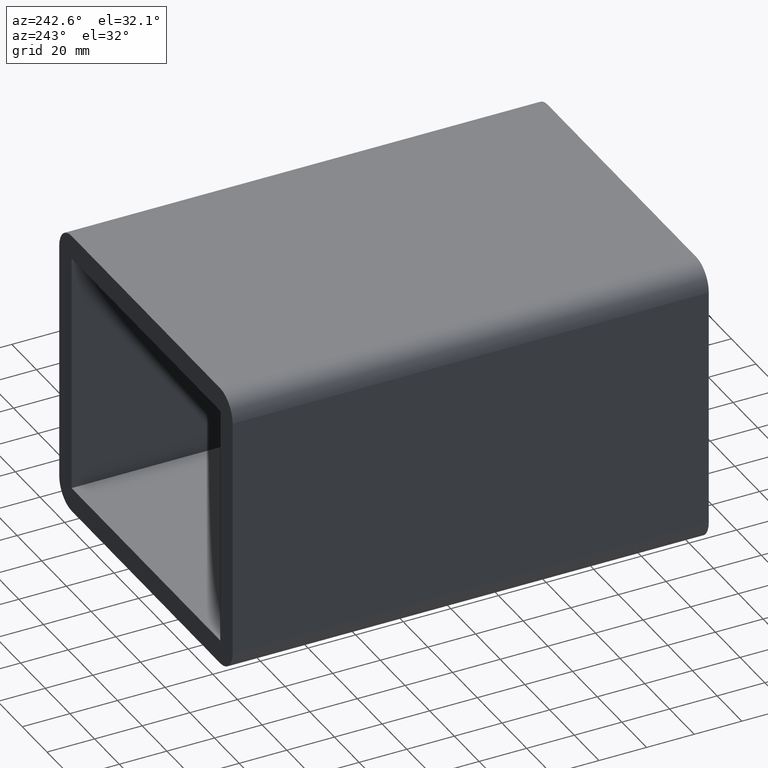
[diagram: clean part render]
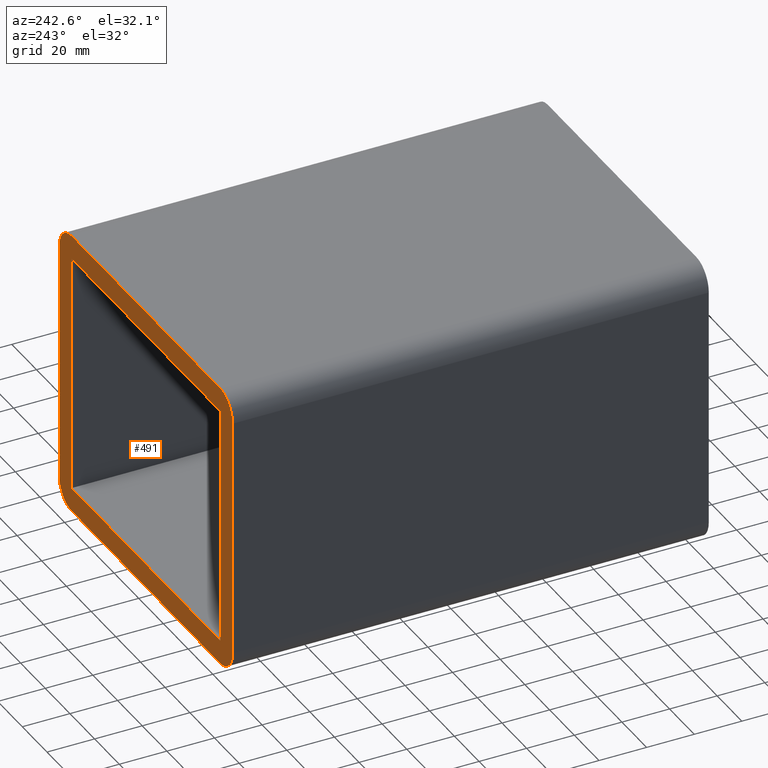
[diagram: same view with one face highlighted and labeled with its STEP entity id]
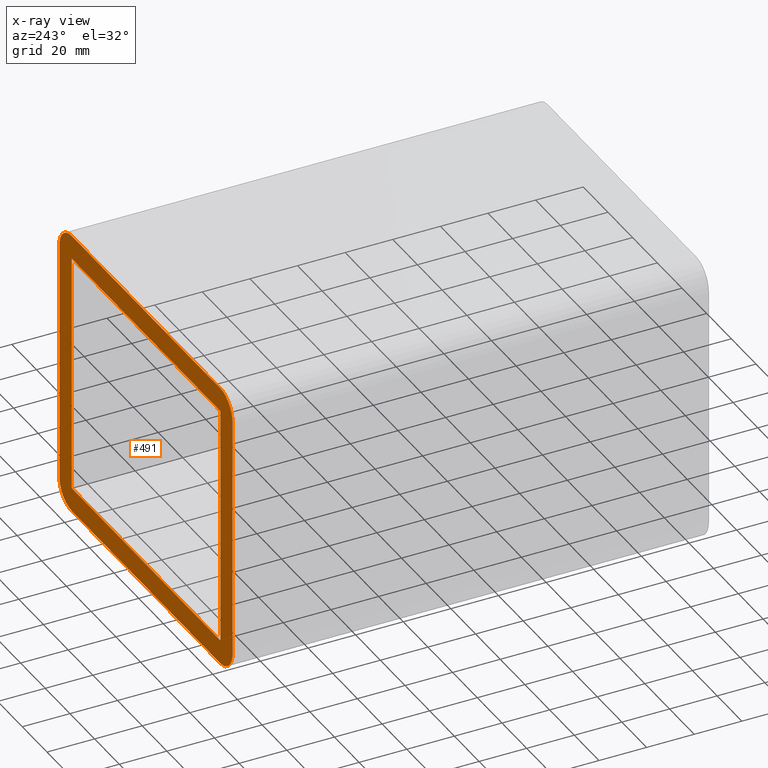
[diagram: x-ray of the same camera — body ghosted, the highlighted face saturated]
A machine part, auxiliary view. The second image highlights one B-rep face of the part: STEP entity #491.
The next image is the same camera in x-ray: the body ghosted, the highlighted face saturated — about 0% of this face is hidden behind the body in this view.
In plain terms, the highlighted planar face has unit normal (0, 1, 0).
Its self-contained STEP definition (entity closure, byte-faithful):
#73=CARTESIAN_POINT('',(-70.250000000000014,197.0,-50.500000000000007));
#74=VERTEX_POINT('',#73);
#75=CARTESIAN_POINT('',(-60.250000000000014,197.0,-60.500000000000007));
#76=VERTEX_POINT('',#75);
#77=CARTESIAN_POINT('',(-60.250000000000014,197.0,-50.500000000000007));
#78=DIRECTION('',(0.0,-1.0,0.0));
#79=DIRECTION('',(-0.707106781186547,0.0,-0.707106781186547));
#80=AXIS2_PLACEMENT_3D('',#77,#78,#79);
#81=CIRCLE('',#80,9.999999999999998);
#82=EDGE_CURVE('',#74,#76,#81,.T.);
#216=CARTESIAN_POINT('',(60.249999999999993,197.0,-60.500000000000007));
#217=VERTEX_POINT('',#216);
#218=CARTESIAN_POINT('',(60.25,197.0,-60.500000000000007));
#219=DIRECTION('',(-1.0,0.0,0.0));
#220=VECTOR('',#219,120.5);
#221=LINE('',#218,#220);
#222=EDGE_CURVE('',#217,#76,#221,.T.);
#239=CARTESIAN_POINT('',(70.25,197.0,-50.500000000000007));
#240=VERTEX_POINT('',#239);
#241=CARTESIAN_POINT('',(60.249999999999993,197.0,-50.500000000000007));
#242=DIRECTION('',(0.0,-1.0,0.0));
#243=DIRECTION('',(0.707106781186547,0.0,-0.707106781186547));
#244=AXIS2_PLACEMENT_3D('',#241,#242,#243);
#245=CIRCLE('',#244,9.999999999999998);
#246=EDGE_CURVE('',#217,#240,#245,.T.);
#265=CARTESIAN_POINT('',(70.25,197.0,50.500000000000007));
#266=VERTEX_POINT('',#265);
#273=CARTESIAN_POINT('',(60.249999999999993,197.0,60.500000000000007));
#274=VERTEX_POINT('',#273);
#275=CARTESIAN_POINT('',(60.249999999999993,197.0,50.500000000000007));
#276=DIRECTION('',(0.0,-1.0,0.0));
#277=DIRECTION('',(0.707106781186547,0.0,0.707106781186547));
#278=AXIS2_PLACEMENT_3D('',#275,#276,#277);
#279=CIRCLE('',#278,9.999999999999998);
#280=EDGE_CURVE('',#266,#274,#279,.T.);
#297=CARTESIAN_POINT('',(-60.250000000000014,197.0,60.500000000000007));
#298=VERTEX_POINT('',#297);
#299=CARTESIAN_POINT('',(-60.250000000000014,197.0,60.500000000000007));
#300=DIRECTION('',(1.0,0.0,0.0));
#301=VECTOR('',#300,120.5);
#302=LINE('',#299,#301);
#303=EDGE_CURVE('',#298,#274,#302,.T.);
#320=CARTESIAN_POINT('',(-70.250000000000014,197.0,50.500000000000007));
#321=VERTEX_POINT('',#320);
#322=CARTESIAN_POINT('',(-60.250000000000014,197.0,50.500000000000007));
#323=DIRECTION('',(0.0,-1.0,0.0));
#324=DIRECTION('',(-0.707106781186547,0.0,0.707106781186547));
#325=AXIS2_PLACEMENT_3D('',#322,#323,#324);
#326=CIRCLE('',#325,9.999999999999998);
#327=EDGE_CURVE('',#298,#321,#326,.T.);
#345=CARTESIAN_POINT('',(60.25,197.0,-50.500000000000014));
#346=VERTEX_POINT('',#345);
#354=CARTESIAN_POINT('',(60.25,197.0,50.5));
#355=VERTEX_POINT('',#354);
#362=CARTESIAN_POINT('',(60.25,197.0,-50.500000000000014));
#363=DIRECTION('',(0.0,0.0,1.0));
#364=VECTOR('',#363,101.00000000000001);
#365=LINE('',#362,#364);
#366=EDGE_CURVE('',#346,#355,#365,.T.);
#378=CARTESIAN_POINT('',(-60.25,197.0,50.5));
#379=VERTEX_POINT('',#378);
#386=CARTESIAN_POINT('',(60.25,197.0,50.500000000000007));
#387=DIRECTION('',(-1.0,0.0,0.0));
#388=VECTOR('',#387,120.5);
#389=LINE('',#386,#388);
#390=EDGE_CURVE('',#355,#379,#389,.T.);
#402=CARTESIAN_POINT('',(-60.25,197.0,-50.500000000000014));
#403=VERTEX_POINT('',#402);
#410=CARTESIAN_POINT('',(-60.250000000000014,197.0,50.500000000000007));
#411=DIRECTION('',(0.0,0.0,-1.0));
#412=VECTOR('',#411,101.00000000000003);
#413=LINE('',#410,#412);
#414=EDGE_CURVE('',#379,#403,#413,.T.);
#427=CARTESIAN_POINT('',(-60.25,197.0,-50.500000000000014));
#428=DIRECTION('',(1.0,0.0,0.0));
#429=VECTOR('',#428,120.5);
#430=LINE('',#427,#429);
#431=EDGE_CURVE('',#403,#346,#430,.T.);
#444=CARTESIAN_POINT('',(-70.250000000000014,197.0,-50.500000000000007));
#445=DIRECTION('',(0.0,0.0,1.0));
#446=VECTOR('',#445,101.00000000000001);
#447=LINE('',#444,#446);
#448=EDGE_CURVE('',#74,#321,#447,.T.);
#459=CARTESIAN_POINT('',(70.25,197.0,50.500000000000007));
#460=DIRECTION('',(0.0,0.0,-1.0));
#461=VECTOR('',#460,101.00000000000001);
#462=LINE('',#459,#461);
#463=EDGE_CURVE('',#266,#240,#462,.T.);
#470=CARTESIAN_POINT('',(-1.053757E-014,197.0,0.0));
#471=DIRECTION('',(0.0,1.0,0.0));
#472=DIRECTION('',(0.0,0.0,1.0));
#473=AXIS2_PLACEMENT_3D('',#470,#471,#472);
#474=PLANE('',#473);
#475=ORIENTED_EDGE('',*,*,#82,.F.);
#476=ORIENTED_EDGE('',*,*,#448,.T.);
#477=ORIENTED_EDGE('',*,*,#327,.F.);
#478=ORIENTED_EDGE('',*,*,#303,.T.);
#479=ORIENTED_EDGE('',*,*,#280,.F.);
#480=ORIENTED_EDGE('',*,*,#463,.T.);
#481=ORIENTED_EDGE('',*,*,#246,.F.);
#482=ORIENTED_EDGE('',*,*,#222,.T.);
#483=EDGE_LOOP('',(#475,#476,#477,#478,#479,#480,#481,#482));
#484=FACE_OUTER_BOUND('',#483,.T.);
#485=ORIENTED_EDGE('',*,*,#366,.T.);
#486=ORIENTED_EDGE('',*,*,#390,.T.);
#487=ORIENTED_EDGE('',*,*,#414,.T.);
#488=ORIENTED_EDGE('',*,*,#431,.T.);
#489=EDGE_LOOP('',(#485,#486,#487,#488));
#490=FACE_BOUND('',#489,.T.);
#491=ADVANCED_FACE('',(#484,#490),#474,.T.);